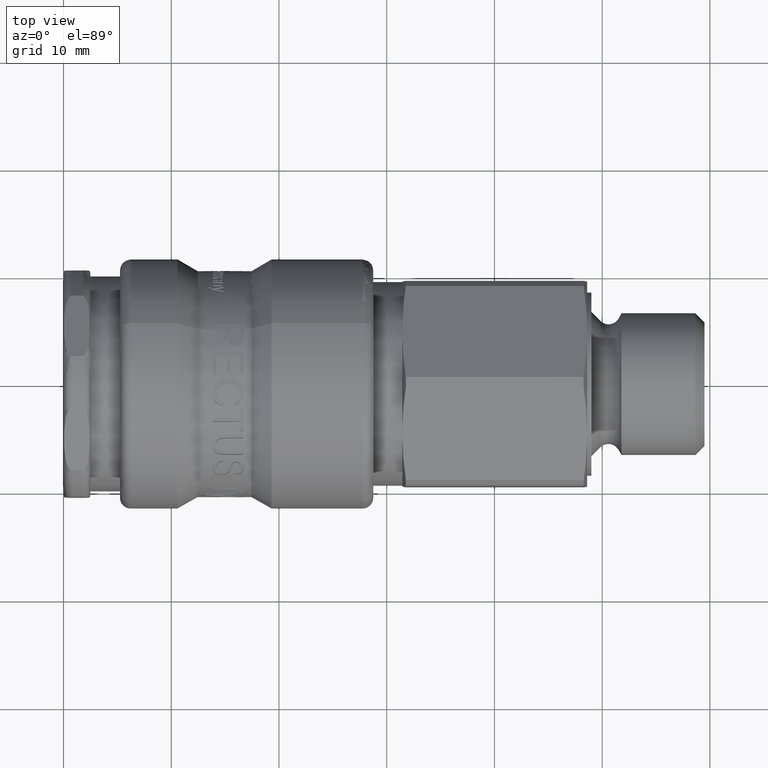
[diagram: clean part render]
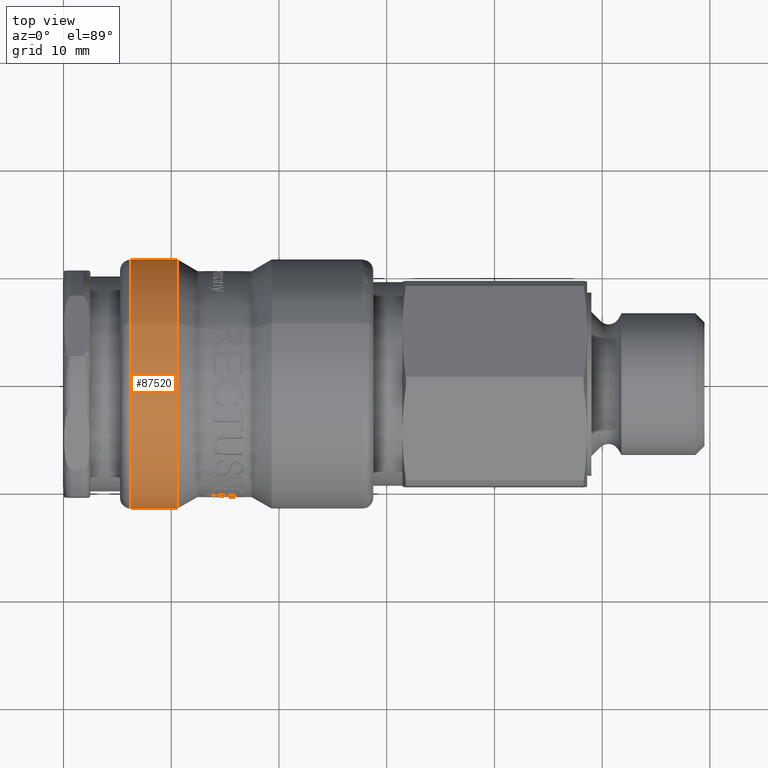
[diagram: same view with one face highlighted and labeled with its STEP entity id]
A machine part, top view. The second image highlights one B-rep face of the part: STEP entity #87520.
In plain terms, the highlighted cylindrical surface (bore or boss wall) has radius 11.575 mm, axis along (1, 0, 0).
Its self-contained STEP definition (entity closure, byte-faithful):
#87489=CARTESIAN_POINT('',(6.25,5.497306160585969,10.186277532876453));
#87490=VERTEX_POINT('',#87489);
#87491=CARTESIAN_POINT('',(6.25,0.0,0.0));
#87492=DIRECTION('',(-1.0,0.0,0.0));
#87493=DIRECTION('',(0.0,-0.474929257933993,-0.880023976922372));
#87494=AXIS2_PLACEMENT_3D('',#87491,#87492,#87493);
#87495=CIRCLE('',#87494,11.575000000000003);
#87496=EDGE_CURVE('',#87490,#87490,#87495,.T.);
#87501=CARTESIAN_POINT('',(7.919022690931728,0.0,0.0));
#87502=DIRECTION('',(1.0,0.0,0.0));
#87503=DIRECTION('',(0.0,0.474929257933993,0.880023976922372));
#87504=AXIS2_PLACEMENT_3D('',#87501,#87502,#87503);
#87505=CYLINDRICAL_SURFACE('',#87504,11.575000000000005);
#87506=CARTESIAN_POINT('',(10.588045381863454,5.497306160585966,10.186277532876456));
#87507=VERTEX_POINT('',#87506);
#87508=CARTESIAN_POINT('',(10.588045381863454,0.0,0.0));
#87509=DIRECTION('',(1.0,0.0,0.0));
#87510=DIRECTION('',(0.0,0.474929257933993,0.880023976922372));
#87511=AXIS2_PLACEMENT_3D('',#87508,#87509,#87510);
#87512=CIRCLE('',#87511,11.575000000000003);
#87513=EDGE_CURVE('',#87507,#87507,#87512,.T.);
#87514=ORIENTED_EDGE('',*,*,#87513,.F.);
#87515=EDGE_LOOP('',(#87514));
#87516=FACE_OUTER_BOUND('',#87515,.T.);
#87517=ORIENTED_EDGE('',*,*,#87496,.F.);
#87518=EDGE_LOOP('',(#87517));
#87519=FACE_BOUND('',#87518,.T.);
#87520=ADVANCED_FACE('',(#87516,#87519),#87505,.T.);